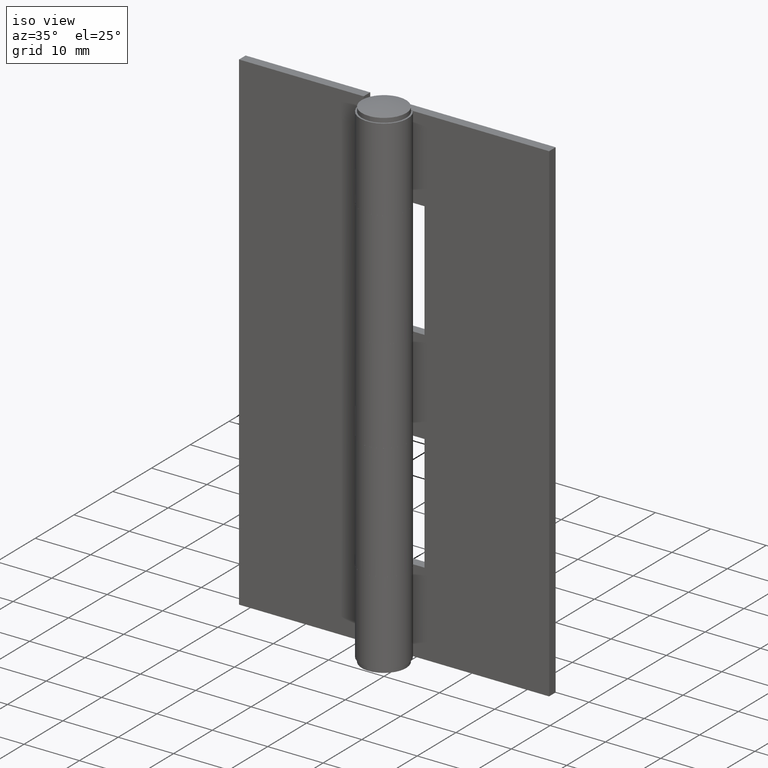
[diagram: clean part render]
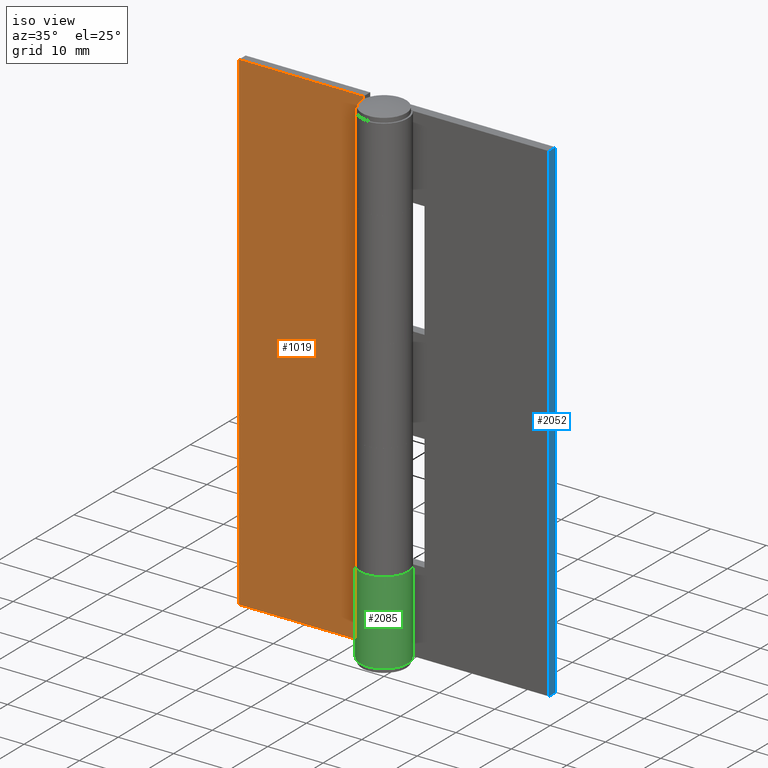
[diagram: same view with three faces highlighted in distinct colors, each labeled with its STEP entity id]
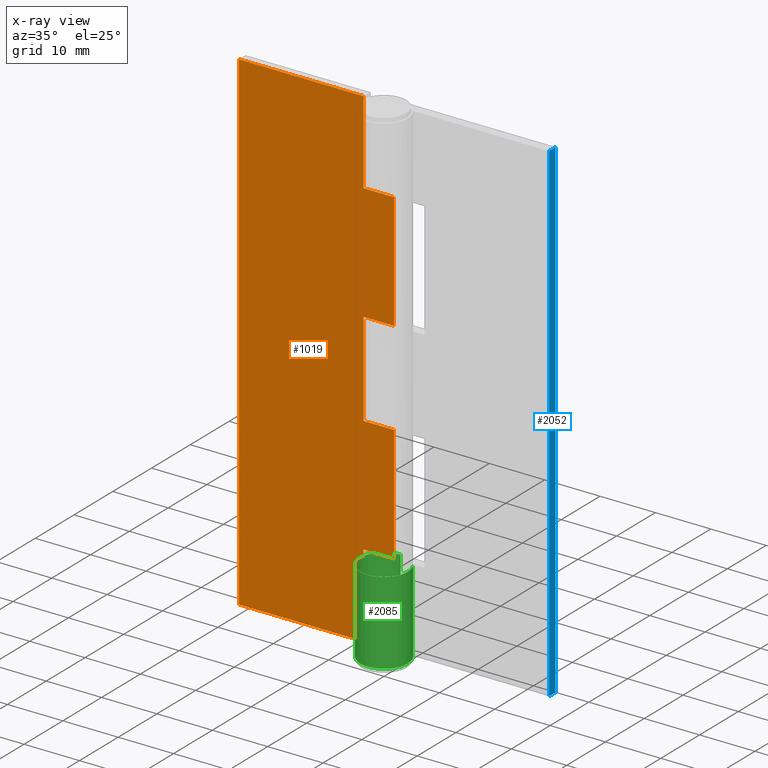
[diagram: x-ray of the same camera — body ghosted, the three highlighted faces saturated]
A machine part, iso view with three faces highlighted in distinct colors.
The next image is the same camera in x-ray (body ghosted, the three faces saturated) — at least one of them is partly hidden behind the body in this view.
Their STEP definitions:

[orange] entity #1019 — the highlighted face is a freeform B-spline surface patch.
#437=CARTESIAN_POINT('',(-28.0,2.599998000000000,0.0));
#438=VERTEX_POINT('',#437);
#446=CARTESIAN_POINT('',(-28.0,2.599998000000000,89.0));
#447=VERTEX_POINT('',#446);
#448=CARTESIAN_POINT('',(-28.0,2.599998000000000,89.0));
#449=CARTESIAN_POINT('',(-28.0,2.599998000000000,0.0));
#450=QUASI_UNIFORM_CURVE('',1,(#448,#449),.UNSPECIFIED.,.F.,.U.);
#451=EDGE_CURVE('',#447,#438,#450,.T.);
#473=CARTESIAN_POINT('',(-5.499999999999940,2.599998000000000,89.0));
#474=VERTEX_POINT('',#473);
#475=CARTESIAN_POINT('',(-5.499999999999940,2.599998000000000,74.0));
#476=VERTEX_POINT('',#475);
#477=CARTESIAN_POINT('',(-5.499999999999940,2.599998000000000,89.0));
#478=CARTESIAN_POINT('',(-5.499999999999940,2.599998000000000,74.0));
#479=QUASI_UNIFORM_CURVE('',1,(#477,#478),.UNSPECIFIED.,.F.,.U.);
#480=EDGE_CURVE('',#474,#476,#479,.T.);
#552=CARTESIAN_POINT('',(0.003224902481136,2.599998000000000,74.0));
#553=VERTEX_POINT('',#552);
#554=CARTESIAN_POINT('',(-5.499999999999940,2.599998000000000,74.0));
#555=CARTESIAN_POINT('',(0.003224902481136,2.599998000000000,74.0));
#556=QUASI_UNIFORM_CURVE('',1,(#554,#555),.UNSPECIFIED.,.F.,.U.);
#557=EDGE_CURVE('',#476,#553,#556,.T.);
#603=CARTESIAN_POINT('',(-5.499999999999940,2.599998000000000,15.0));
#604=VERTEX_POINT('',#603);
#605=CARTESIAN_POINT('',(-5.499999999999940,2.599998000000000,0.0));
#606=VERTEX_POINT('',#605);
#607=CARTESIAN_POINT('',(-5.499999999999940,2.599998000000000,15.0));
#608=CARTESIAN_POINT('',(-5.499999999999940,2.599998000000000,0.0));
#609=QUASI_UNIFORM_CURVE('',1,(#607,#608),.UNSPECIFIED.,.F.,.U.);
#610=EDGE_CURVE('',#604,#606,#609,.T.);
#682=CARTESIAN_POINT('',(0.003224902481136,2.599998000000000,15.0));
#683=VERTEX_POINT('',#682);
#713=CARTESIAN_POINT('',(0.003224902481136,2.599998000000000,15.0));
#714=CARTESIAN_POINT('',(-5.499999999999940,2.599998000000000,15.0));
#715=QUASI_UNIFORM_CURVE('',1,(#713,#714),.UNSPECIFIED.,.F.,.U.);
#716=EDGE_CURVE('',#683,#604,#715,.T.);
#777=CARTESIAN_POINT('',(0.003224902481136,2.599998000000000,53.0));
#778=VERTEX_POINT('',#777);
#808=CARTESIAN_POINT('',(-5.500000000000000,2.599998000000000,53.0));
#809=VERTEX_POINT('',#808);
#810=CARTESIAN_POINT('',(0.003224902481136,2.599998000000000,53.0));
#811=CARTESIAN_POINT('',(-5.500000000000000,2.599998000000000,53.0));
#812=QUASI_UNIFORM_CURVE('',1,(#810,#811),.UNSPECIFIED.,.F.,.U.);
#813=EDGE_CURVE('',#778,#809,#812,.T.);
#835=CARTESIAN_POINT('',(-5.500000000000000,2.599998000000000,36.0));
#836=VERTEX_POINT('',#835);
#837=CARTESIAN_POINT('',(-5.500000000000000,2.599998000000000,53.0));
#838=CARTESIAN_POINT('',(-5.500000000000000,2.599998000000000,36.0));
#839=QUASI_UNIFORM_CURVE('',1,(#837,#838),.UNSPECIFIED.,.F.,.U.);
#840=EDGE_CURVE('',#809,#836,#839,.T.);
#906=CARTESIAN_POINT('',(0.003224902481136,2.599998000000000,36.0));
#907=VERTEX_POINT('',#906);
#908=CARTESIAN_POINT('',(-5.500000000000000,2.599998000000000,36.0));
#909=CARTESIAN_POINT('',(0.003224902481136,2.599998000000000,36.0));
#910=QUASI_UNIFORM_CURVE('',1,(#908,#909),.UNSPECIFIED.,.F.,.U.);
#911=EDGE_CURVE('',#836,#907,#910,.T.);
#958=CARTESIAN_POINT('',(-5.499999999999940,2.599998000000000,0.0));
#959=CARTESIAN_POINT('',(-28.0,2.599998000000000,0.0));
#960=QUASI_UNIFORM_CURVE('',1,(#958,#959),.UNSPECIFIED.,.F.,.U.);
#961=EDGE_CURVE('',#606,#438,#960,.T.);
#977=CARTESIAN_POINT('',(-5.499999999999940,2.599998000000000,89.0));
#978=CARTESIAN_POINT('',(-28.0,2.599998000000000,89.0));
#979=QUASI_UNIFORM_CURVE('',1,(#977,#978),.UNSPECIFIED.,.F.,.U.);
#980=EDGE_CURVE('',#474,#447,#979,.T.);
#992=CARTESIAN_POINT('',(-29.398761029603250,2.599998000000000,-4.445549827500724));
#993=CARTESIAN_POINT('',(1.401986683189407,2.599998000000000,-4.445549827500724));
#994=CARTESIAN_POINT('',(-29.398761029603250,2.599998000000000,93.445552214666762));
#995=CARTESIAN_POINT('',(1.401986683189407,2.599998000000000,93.445552214666762));
#996=B_SPLINE_SURFACE_WITH_KNOTS('',1,1,((#992,#994),(#993,#995)),.UNSPECIFIED.,.F.,.F.,.U.,(2,2),(2,2),(0.0,30.800747712792660),(0.0,97.891102042167489),.UNSPECIFIED.);
#997=ORIENTED_EDGE('',*,*,#557,.F.);
#998=ORIENTED_EDGE('',*,*,#480,.F.);
#999=ORIENTED_EDGE('',*,*,#980,.T.);
#1000=ORIENTED_EDGE('',*,*,#451,.T.);
#1001=ORIENTED_EDGE('',*,*,#961,.F.);
#1002=ORIENTED_EDGE('',*,*,#610,.F.);
#1003=ORIENTED_EDGE('',*,*,#716,.F.);
#1004=CARTESIAN_POINT('',(0.003224902481136,2.599998000000000,36.0));
#1005=CARTESIAN_POINT('',(0.003224902481136,2.599998000000000,15.0));
#1006=QUASI_UNIFORM_CURVE('',1,(#1004,#1005),.UNSPECIFIED.,.F.,.U.);
#1007=EDGE_CURVE('',#907,#683,#1006,.T.);
#1008=ORIENTED_EDGE('',*,*,#1007,.F.);
#1009=ORIENTED_EDGE('',*,*,#911,.F.);
#1010=ORIENTED_EDGE('',*,*,#840,.F.);
#1011=ORIENTED_EDGE('',*,*,#813,.F.);
#1012=CARTESIAN_POINT('',(0.003224902481136,2.599998000000000,74.0));
#1013=CARTESIAN_POINT('',(0.003224902481136,2.599998000000000,53.0));
#1014=QUASI_UNIFORM_CURVE('',1,(#1012,#1013),.UNSPECIFIED.,.F.,.U.);
#1015=EDGE_CURVE('',#553,#778,#1014,.T.);
#1016=ORIENTED_EDGE('',*,*,#1015,.F.);
#1017=EDGE_LOOP('',(#997,#998,#999,#1000,#1001,#1002,#1003,#1008,#1009,#1010,#1011,#1016));
#1018=FACE_OUTER_BOUND('',#1017,.T.);
#1019=ADVANCED_FACE('',(#1018),#996,.T.);

[blue] entity #2052 — the highlighted face is a freeform B-spline surface patch.
#1635=CARTESIAN_POINT('',(28.0,2.599998000000000,0.0));
#1636=VERTEX_POINT('',#1635);
#1642=CARTESIAN_POINT('',(28.0,2.599998000000000,89.0));
#1643=VERTEX_POINT('',#1642);
#1644=CARTESIAN_POINT('',(28.0,2.599998000000000,89.0));
#1645=CARTESIAN_POINT('',(28.0,2.599998000000000,0.0));
#1646=QUASI_UNIFORM_CURVE('',1,(#1644,#1645),.UNSPECIFIED.,.F.,.U.);
#1647=EDGE_CURVE('',#1643,#1636,#1646,.T.);
#1932=CARTESIAN_POINT('',(28.0,4.299999000000000,0.0));
#1933=VERTEX_POINT('',#1932);
#1939=CARTESIAN_POINT('',(28.0,4.299999000000000,0.0));
#1940=CARTESIAN_POINT('',(28.0,2.599998000000000,0.0));
#1941=QUASI_UNIFORM_CURVE('',1,(#1939,#1940),.UNSPECIFIED.,.F.,.U.);
#1942=EDGE_CURVE('',#1933,#1636,#1941,.T.);
#1988=CARTESIAN_POINT('',(28.0,4.299999000000000,89.0));
#1989=VERTEX_POINT('',#1988);
#2029=CARTESIAN_POINT('',(28.0,4.299999000000000,89.0));
#2030=CARTESIAN_POINT('',(28.0,2.599998000000000,89.0));
#2031=QUASI_UNIFORM_CURVE('',1,(#2029,#2030),.UNSPECIFIED.,.F.,.U.);
#2032=EDGE_CURVE('',#1989,#1643,#2031,.T.);
#2037=CARTESIAN_POINT('',(28.0,2.515082953344932,93.445549827500756));
#2038=CARTESIAN_POINT('',(28.0,2.515082953344932,-4.445552214666751));
#2039=CARTESIAN_POINT('',(28.0,4.384914092252648,93.445549827500756));
#2040=CARTESIAN_POINT('',(28.0,4.384914092252648,-4.445552214666751));
#2041=B_SPLINE_SURFACE_WITH_KNOTS('',1,1,((#2037,#2039),(#2038,#2040)),.UNSPECIFIED.,.F.,.F.,.U.,(2,2),(2,2),(0.0,97.891102042167503),(0.0,1.869831138907716),.UNSPECIFIED.);
#2042=ORIENTED_EDGE('',*,*,#1942,.F.);
#2043=CARTESIAN_POINT('',(28.0,4.299999000000000,89.0));
#2044=CARTESIAN_POINT('',(28.0,4.299999000000000,0.0));
#2045=QUASI_UNIFORM_CURVE('',1,(#2043,#2044),.UNSPECIFIED.,.F.,.U.);
#2046=EDGE_CURVE('',#1989,#1933,#2045,.T.);
#2047=ORIENTED_EDGE('',*,*,#2046,.F.);
#2048=ORIENTED_EDGE('',*,*,#2032,.T.);
#2049=ORIENTED_EDGE('',*,*,#1647,.T.);
#2050=EDGE_LOOP('',(#2042,#2047,#2048,#2049));
#2051=FACE_OUTER_BOUND('',#2050,.T.);
#2052=ADVANCED_FACE('',(#2051),#2041,.T.);

[green] entity #2085 — the highlighted face is a freeform B-spline surface patch.
#1220=CARTESIAN_POINT('',(3.462298398462500,2.549998000000000,15.0));
#1221=VERTEX_POINT('',#1220);
#1227=CARTESIAN_POINT('',(3.462298398462500,2.549998000000000,0.0));
#1228=VERTEX_POINT('',#1227);
#1229=CARTESIAN_POINT('',(3.462298398462500,2.549998000000000,15.0));
#1230=CARTESIAN_POINT('',(3.462298398462500,2.549998000000000,0.0));
#1231=QUASI_UNIFORM_CURVE('',1,(#1229,#1230),.UNSPECIFIED.,.F.,.U.);
#1232=EDGE_CURVE('',#1221,#1228,#1231,.T.);
#1881=CARTESIAN_POINT('',(0.0,4.299999000000000,15.0));
#1882=VERTEX_POINT('',#1881);
#1888=CARTESIAN_POINT('',(3.462298398462500,2.549998000000000,15.0));
#1889=CARTESIAN_POINT('',(3.630972534273556,2.321016897636167,15.000000000000041));
#1890=CARTESIAN_POINT('',(3.961122555640986,1.764740596138907,14.999999999999940));
#1891=CARTESIAN_POINT('',(4.233562325002902,0.917344479295190,15.000000000000130));
#1892=CARTESIAN_POINT('',(4.330066042822837,-0.024138024762106,14.999999999999790));
#1893=CARTESIAN_POINT('',(4.229415312075642,-1.014202045496168,15.000000000000190));
#1894=CARTESIAN_POINT('',(3.864674861083253,-1.975387491671621,15.000000000000110));
#1895=CARTESIAN_POINT('',(3.264062585849608,-2.857954916270258,14.999999999999790));
#1896=CARTESIAN_POINT('',(2.507866296350465,-3.553319445457552,15.000000000000091));
#1897=CARTESIAN_POINT('',(1.585609774593814,-4.036180471896969,14.999999999999989));
#1898=CARTESIAN_POINT('',(0.712813451295236,-4.266284884236678,15.000000000000011));
#1899=CARTESIAN_POINT('',(-0.156727618842211,-4.327149303310804,15.000000000000020));
#1900=CARTESIAN_POINT('',(-1.082610612519203,-4.202587772673910,15.000000000000050));
#1901=CARTESIAN_POINT('',(-2.038952919844951,-3.832993861854988,14.999999999999680));
#1902=CARTESIAN_POINT('',(-2.879919370061811,-3.246507098585394,15.000000000000030));
#1903=CARTESIAN_POINT('',(-3.490695775480685,-2.559593810423440,15.000000000000030));
#1904=CARTESIAN_POINT('',(-3.876881093432644,-1.897919429632747,14.999999999999989));
#1905=CARTESIAN_POINT('',(-4.125424550879032,-1.270139796660896,15.0));
#1906=CARTESIAN_POINT('',(-4.290062227512772,-0.552707382521175,15.0));
#1907=CARTESIAN_POINT('',(-4.320545445552490,0.259463203330588,15.000000000000011));
#1908=CARTESIAN_POINT('',(-4.161679388362297,1.239036660840571,15.0));
#1909=CARTESIAN_POINT('',(-3.789614183407962,2.116539566114823,15.0));
#1910=CARTESIAN_POINT('',(-3.271606612689642,2.817638318105109,15.000000000000069));
#1911=CARTESIAN_POINT('',(-2.726605997583220,3.354775593594800,14.999999999999551));
#1912=CARTESIAN_POINT('',(-2.092947999297049,3.788779488550989,15.000000000000680));
#1913=CARTESIAN_POINT('',(-1.152487520695051,4.188720246532522,15.000000000000290));
#1914=CARTESIAN_POINT('',(-0.449112505616954,4.300241292067632,14.999999999998940));
#1915=CARTESIAN_POINT('',(0.0,4.299999000000000,15.0));
#1916=B_SPLINE_CURVE_WITH_KNOTS('',3,(#1888,#1889,#1890,#1891,#1892,#1893,#1894,#1895,#1896,#1897,#1898,#1899,#1900,#1901,#1902,#1903,#1904,#1905,#1906,#1907,#1908,#1909,#1910,#1911,#1912,#1913,#1914,#1915),.UNSPECIFIED.,.F.,.U.,(4,1,1,1,1,1,1,1,1,1,1,1,1,1,1,1,1,1,1,1,1,1,1,1,1,4),(0.000000511706673,0.853212052039410,1.931036334099069,2.649590099845405,3.682499765283328,4.895037087207307,5.703406301014333,6.870932116429223,7.948752828225990,8.802031108243941,9.565485160575408,10.553473282604561,11.586307023402920,12.619194406864970,13.607197139689861,14.325747621457049,14.909560178975040,15.628118279946200,16.526295986860539,17.334569312670020,18.592017187488011,19.355459429969141,19.939281278775269,20.882377537636700,21.645819779606761,22.993049629024650),.UNSPECIFIED.);
#1917=EDGE_CURVE('',#1221,#1882,#1916,.T.);
#1930=CARTESIAN_POINT('',(-7.898711E-016,4.300000000000000,0.0));
#1931=VERTEX_POINT('',#1930);
#1947=CARTESIAN_POINT('',(3.462298398462500,2.549998000000000,0.0));
#1948=CARTESIAN_POINT('',(3.746627376361110,2.164450360619854,0.0));
#1949=CARTESIAN_POINT('',(4.115694721541544,1.432623633083066,0.0));
#1950=CARTESIAN_POINT('',(4.324340554699314,0.321883770780525,0.0));
#1951=CARTESIAN_POINT('',(4.290415692719106,-0.550918016700261,0.0));
#1952=CARTESIAN_POINT('',(4.121537653004711,-1.282454119551526,0.0));
#1953=CARTESIAN_POINT('',(3.816808766366834,-2.049676994072812,0.0));
#1954=CARTESIAN_POINT('',(3.323043704087006,-2.791729649215462,0.0));
#1955=CARTESIAN_POINT('',(2.540567493570298,-3.518784667129445,0.0));
#1956=CARTESIAN_POINT('',(1.737984335460604,-3.971650809834253,0.0));
#1957=CARTESIAN_POINT('',(0.846641927680742,-4.241841437954018,0.0));
#1958=CARTESIAN_POINT('',(0.083376817776545,-4.323349153716391,0.0));
#1959=CARTESIAN_POINT('',(-0.859885752970133,-4.251312950731873,0.0));
#1960=CARTESIAN_POINT('',(-1.813580916574336,-3.955408443896161,0.0));
#1961=CARTESIAN_POINT('',(-2.690943821431215,-3.396289506070349,0.0));
#1962=CARTESIAN_POINT('',(-3.310072516851008,-2.782163390660870,0.0));
#1963=CARTESIAN_POINT('',(-3.824306353516116,-2.041416569831418,0.0));
#1964=CARTESIAN_POINT('',(-4.160788710825520,-1.216696445415250,0.0));
#1965=CARTESIAN_POINT('',(-4.324187577274120,-0.253570457243688,0.0));
#1966=CARTESIAN_POINT('',(-4.286718511731869,0.665379679091818,0.0));
#1967=CARTESIAN_POINT('',(-4.008997561839818,1.666710175199190,0.0));
#1968=CARTESIAN_POINT('',(-3.544074781311390,2.496413300580850,0.0));
#1969=CARTESIAN_POINT('',(-2.872500676754385,3.246734108875383,0.0));
#1970=CARTESIAN_POINT('',(-2.197399869185782,3.730152155899791,0.0));
#1971=CARTESIAN_POINT('',(-1.458510874125981,4.062639025613128,0.0));
#1972=CARTESIAN_POINT('',(-0.778373109489531,4.252007534595819,0.0));
#1973=CARTESIAN_POINT('',(-0.269435950252362,4.300030118032867,0.0));
#1974=CARTESIAN_POINT('',(-7.898711E-016,4.300000000000000,0.0));
#1975=B_SPLINE_CURVE_WITH_KNOTS('',3,(#1947,#1948,#1949,#1950,#1951,#1952,#1953,#1954,#1955,#1956,#1957,#1958,#1959,#1960,#1961,#1962,#1963,#1964,#1965,#1966,#1967,#1968,#1969,#1970,#1971,#1972,#1973,#1974),.UNSPECIFIED.,.F.,.U.,(4,1,1,1,1,1,1,1,1,1,1,1,1,1,1,1,1,1,1,1,1,1,1,1,1,4),(0.000000511533205,1.437033727644714,2.425040761641892,3.368131796318995,4.041754537758475,4.670478879391990,5.838045021062186,6.691314854329391,7.858935237349987,8.577485754572304,9.475670275822269,10.149295700166791,11.406743636754410,12.439577428582970,13.247941077565700,14.011384348100210,15.134115994644400,15.897558274424570,16.930455409500009,17.873475115027691,18.996203651825450,19.759646922369381,20.882378568914270,21.466197701929708,22.184746901249660,22.993050764536171),.UNSPECIFIED.);
#1976=EDGE_CURVE('',#1228,#1931,#1975,.T.);
#2053=CARTESIAN_POINT('',(0.037524102643004,4.299836269175936,15.375000000000000));
#2054=CARTESIAN_POINT('',(0.037524102643004,4.299836269175936,-0.384375000000000));
#2055=CARTESIAN_POINT('',(-5.400505441964500,4.347293234053961,15.375000000000002));
#2056=CARTESIAN_POINT('',(-5.400505441964500,4.347293234053961,-0.384375000000000));
#2057=CARTESIAN_POINT('',(-4.192587279659576,-0.955097849666046,15.375000000000000));
#2058=CARTESIAN_POINT('',(-4.192587279659576,-0.955097849666046,-0.384375000000000));
#2059=CARTESIAN_POINT('',(-2.984669117354652,-6.257488933386053,15.375000000000002));
#2060=CARTESIAN_POINT('',(-2.984669117354652,-6.257488933386053,-0.384375000000000));
#2061=CARTESIAN_POINT('',(1.896230229681736,-3.859314824686001,15.375000000000000));
#2062=CARTESIAN_POINT('',(1.896230229681736,-3.859314824686001,-0.384375000000000));
#2063=CARTESIAN_POINT('',(6.777129576718125,-1.461140715985949,15.375000000000002));
#2064=CARTESIAN_POINT('',(6.777129576718125,-1.461140715985949,-0.384375000000000));
#2065=CARTESIAN_POINT('',(3.317985708567195,2.735136347194383,15.375000000000000));
#2066=CARTESIAN_POINT('',(3.317985708567195,2.735136347194383,-0.384375000000000));
#2074=(BOUNDED_SURFACE()B_SPLINE_SURFACE(1,2,((#2053,#2055,#2057,#2059,#2061,#2063,#2065),(#2054,#2056,#2058,#2060,#2062,#2064,#2066)),.UNSPECIFIED.,.F.,.F.,.U.)B_SPLINE_SURFACE_WITH_KNOTS((2,2),(3,2,2,3),(0.0,15.759375000000000),(0.0,8.327153373276438,16.654306746552880,24.981460119829318),.UNSPECIFIED.)GEOMETRIC_REPRESENTATION_ITEM()RATIONAL_B_SPLINE_SURFACE(((1.0,0.620235491268260,1.0,0.620235491268260,1.0,0.620235491268260,1.0),(1.0,0.620235491268260,1.0,0.620235491268260,1.0,0.620235491268260,1.0)))REPRESENTATION_ITEM('')SURFACE());
#2075=ORIENTED_EDGE('',*,*,#1232,.F.);
#2076=ORIENTED_EDGE('',*,*,#1917,.T.);
#2077=CARTESIAN_POINT('',(0.0,4.299999000000000,15.0));
#2078=CARTESIAN_POINT('',(-7.898711E-016,4.300000000000000,0.0));
#2079=QUASI_UNIFORM_CURVE('',1,(#2077,#2078),.UNSPECIFIED.,.F.,.U.);
#2080=EDGE_CURVE('',#1882,#1931,#2079,.T.);
#2081=ORIENTED_EDGE('',*,*,#2080,.T.);
#2082=ORIENTED_EDGE('',*,*,#1976,.F.);
#2083=EDGE_LOOP('',(#2075,#2076,#2081,#2082));
#2084=FACE_OUTER_BOUND('',#2083,.T.);
#2085=ADVANCED_FACE('',(#2084),#2074,.T.);